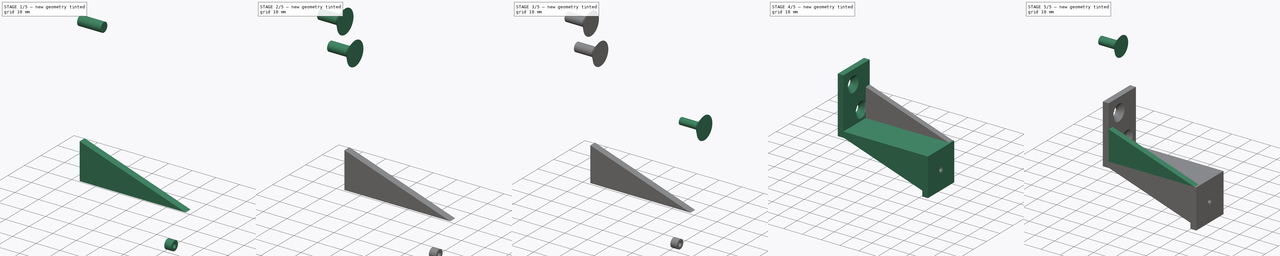
[diagram: build sequence overview — one tinted view per stage of 5, left to right]
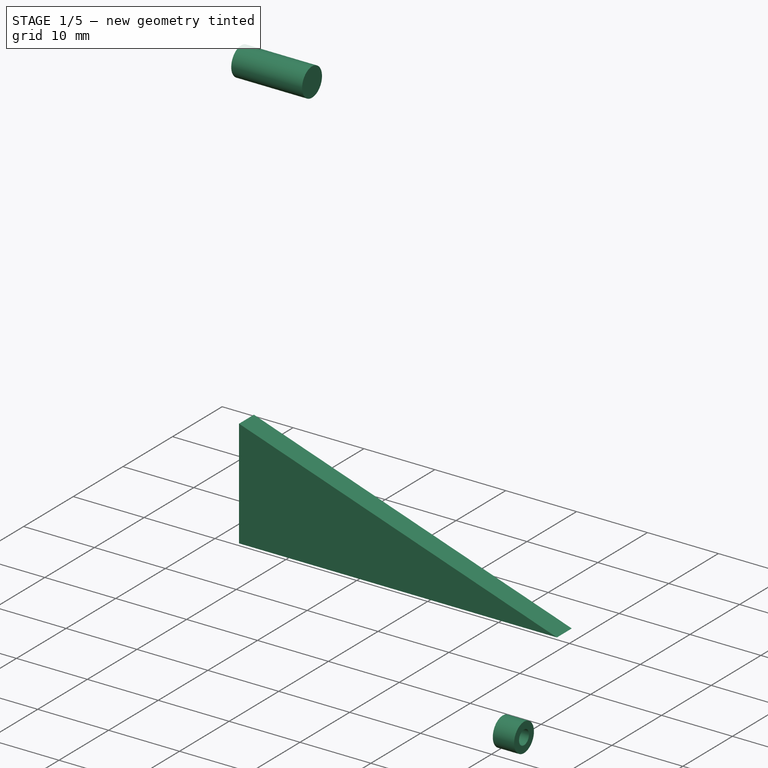
[diagram: stage 1 of 5 — iso view after this stage's code; geometry added in this stage tinted green]
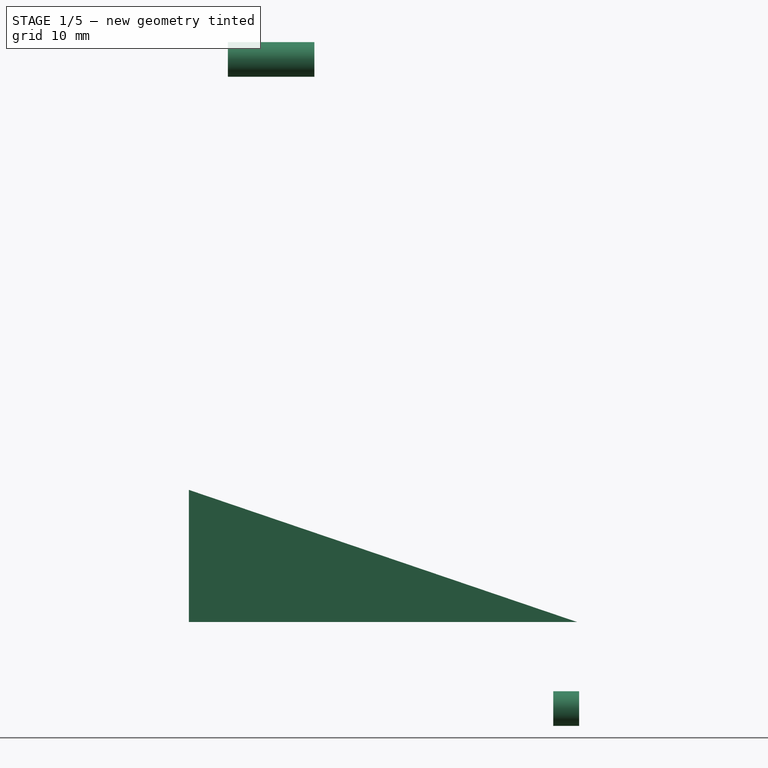
[diagram: stage 1 of 5 — front view after this stage's code; geometry added in this stage tinted green]
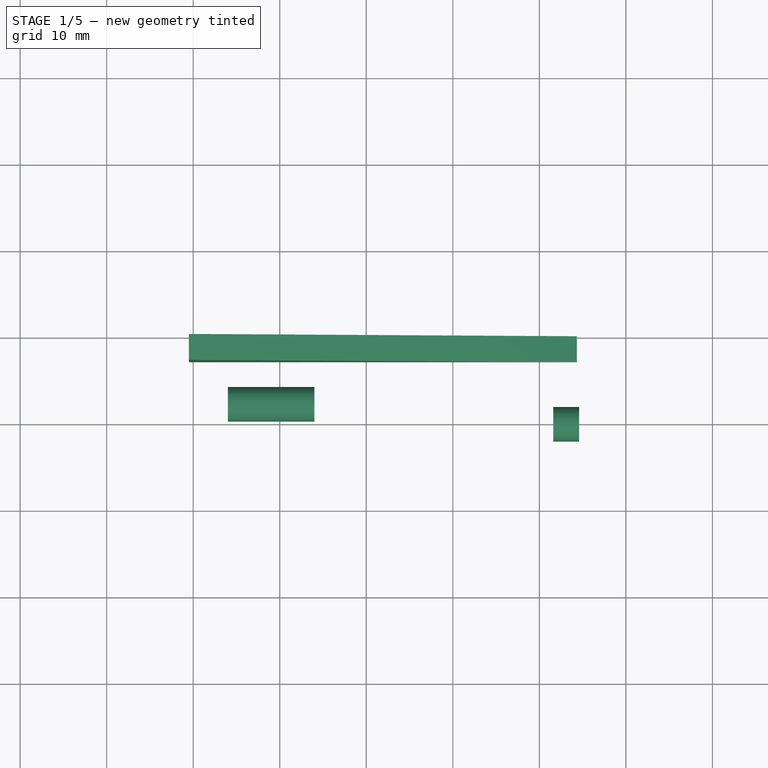
[diagram: stage 1 of 5 — top view after this stage's code; geometry added in this stage tinted green]
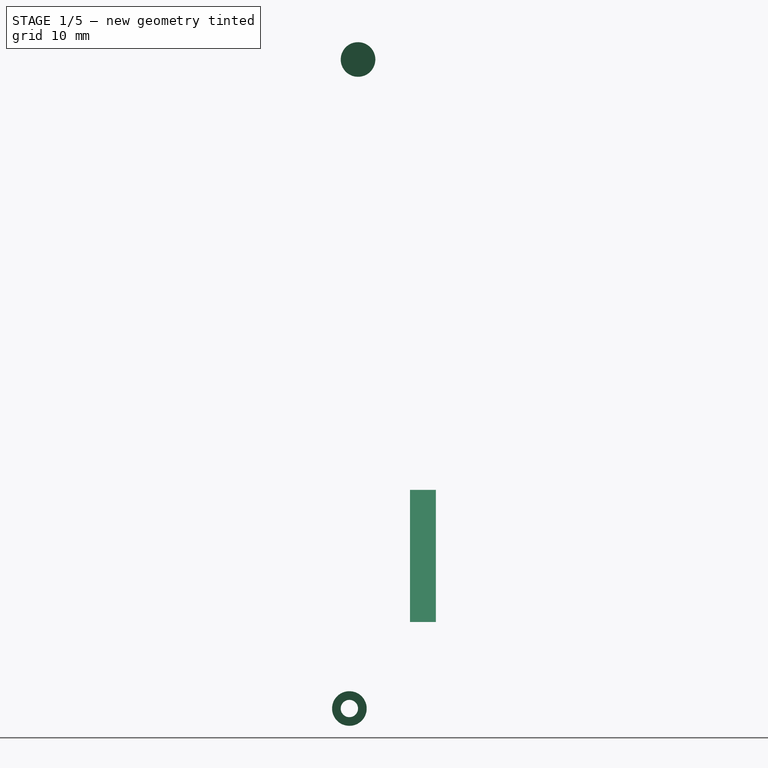
[diagram: stage 1 of 5 — right view after this stage's code; geometry added in this stage tinted green]
FCSTD DOCUMENT  (FreeCAD 0.18R4 (GitTag))
Label: вынос подвески
License: All rights reserved
LicenseURL: http://en.wikipedia.org/wiki/All_rights_reserved
objects: Part::Cylinder×6, Part::Cone×4, Part::Fuse×4, Part::MultiFuse×4, Sketcher::SketchObject×3, PartDesign::Pad×3, PartDesign::Body×3, Part::Cut×3
note: 33 computed .brp shape members not serialized (recipe doc carries the construction recipe); baked Part::Feature solids carry a one-line shape summary decoded from their .brp

FEATURE [Part::Cylinder] Cylinder003  label="Цилиндр003"
  Angle = 360
  AttacherType = Attacher::AttachEngine3D
  Height = 10
  Placement = pos=(-16,-9,68) rot=(0,1,0;1.5708rad)
  Radius = 2
FEATURE [PartDesign::Body] Body001
  Group = -> [Sketch001,Pad001]
  Origin = -> Origin001
  Placement = pos=(0,-17,0) rot=(0,0,1;0rad)
  Tip = -> Pad001
FEATURE [Sketcher::SketchObject] Sketch002
  MapMode = 5
  Placement = pos=(0,0,0) rot=(1,0,0;1.5708rad)
  Support = -> [XZ_Plane002]
  sketch-geometry (3):
    g0: LineSegment StartX=-20.5035 StartY=18.264 StartZ=0 EndX=24.3412 EndY=3.00303 EndZ=0
    g1: LineSegment StartX=24.3412 StartY=3.00303 StartZ=0 EndX=-20.5035 EndY=3.00303 EndZ=0
    g2: LineSegment StartX=-20.5035 StartY=3.00303 StartZ=0 EndX=-20.5035 EndY=18.264 EndZ=0
  constraints (5):
    c: Coincident(g0,g1)
    c: Coincident(g1,g2)
    c: Coincident(g2,g0)
    c: Parallel(g1,g-1)
    c: Parallel(g2,g-2)
FEATURE [PartDesign::Pad] Pad002
  Length = 3
  Length2 = 100
  Placement = pos=(0,0,0) rot=(1,0,0;1.5708rad)
  Profile = -> Sketch002
  Type = 0
FEATURE [Part::Cylinder] Cylinder004  label="Цилиндр004"
  Angle = 360
  AttacherType = Attacher::AttachEngine3D
  Height = 3
  Placement = pos=(33,-10,-7) rot=(0,1,0;1.5708rad)
  Radius = 2
FEATURE [Part::Cylinder] Cylinder005  label="Цилиндр005"
  Angle = 360
  AttacherType = Attacher::AttachEngine3D
  Height = 10
  Placement = pos=(33,-10,-7) rot=(0,1,0;1.5708rad)
  Radius = 1
FEATURE [Part::Cut] Cut002
  Base = -> Cylinder004
  Placement = pos=(-11.4,0,0) rot=(0,0,1;0rad)
  Tool = -> Cylinder005
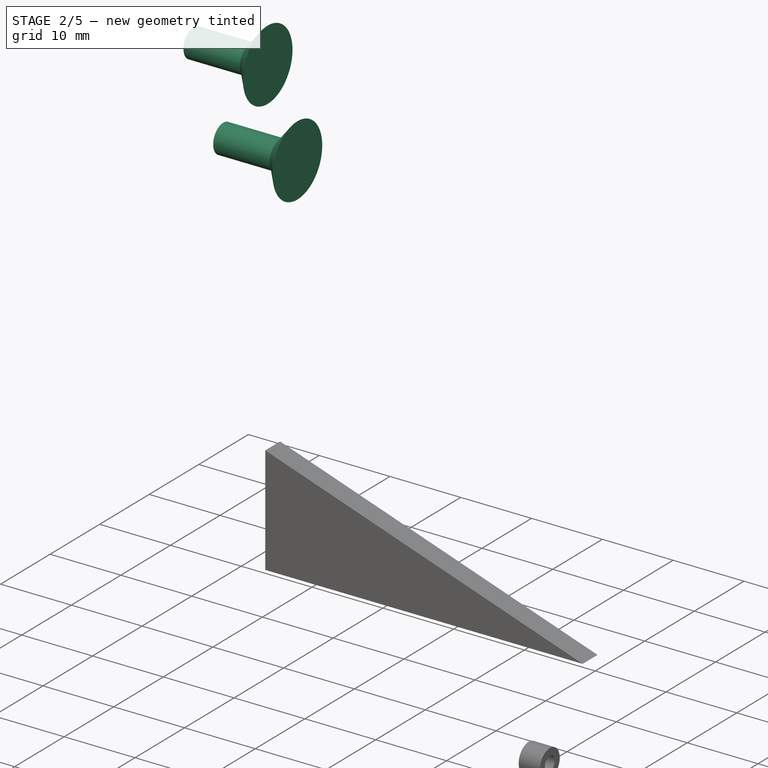
[diagram: stage 2 of 5 — iso view after this stage's code; geometry added in this stage tinted green]
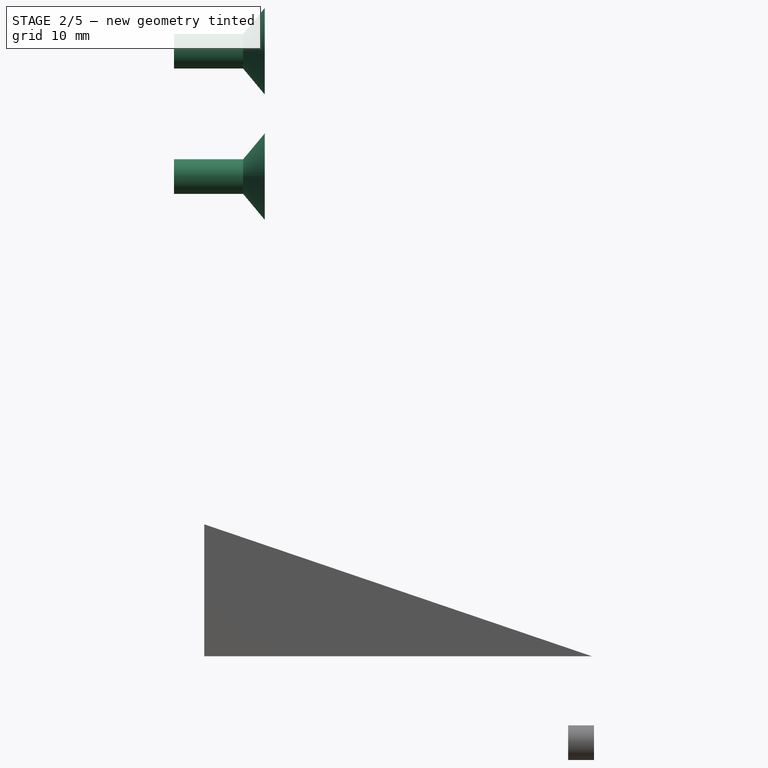
[diagram: stage 2 of 5 — front view after this stage's code; geometry added in this stage tinted green]
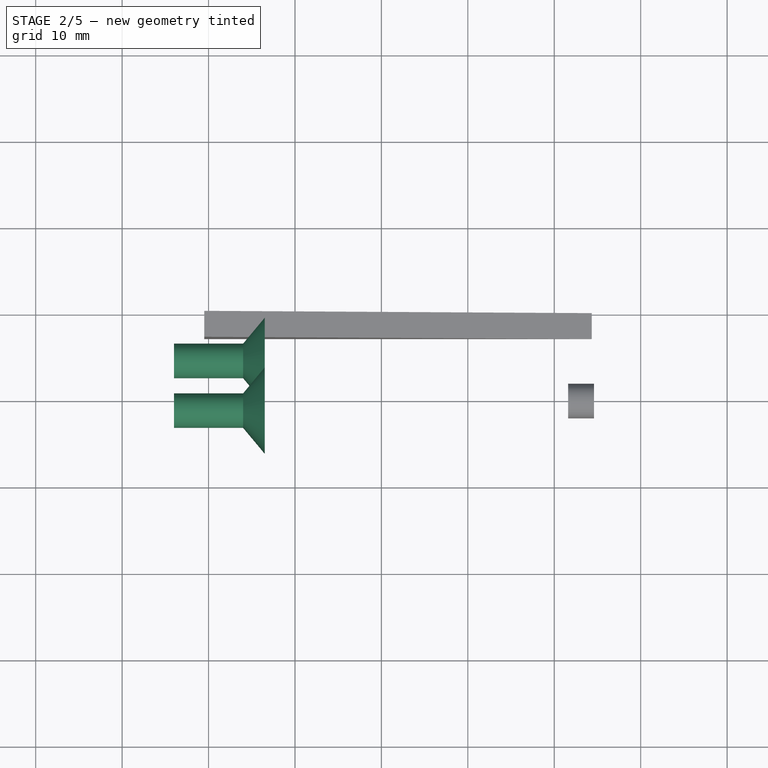
[diagram: stage 2 of 5 — top view after this stage's code; geometry added in this stage tinted green]
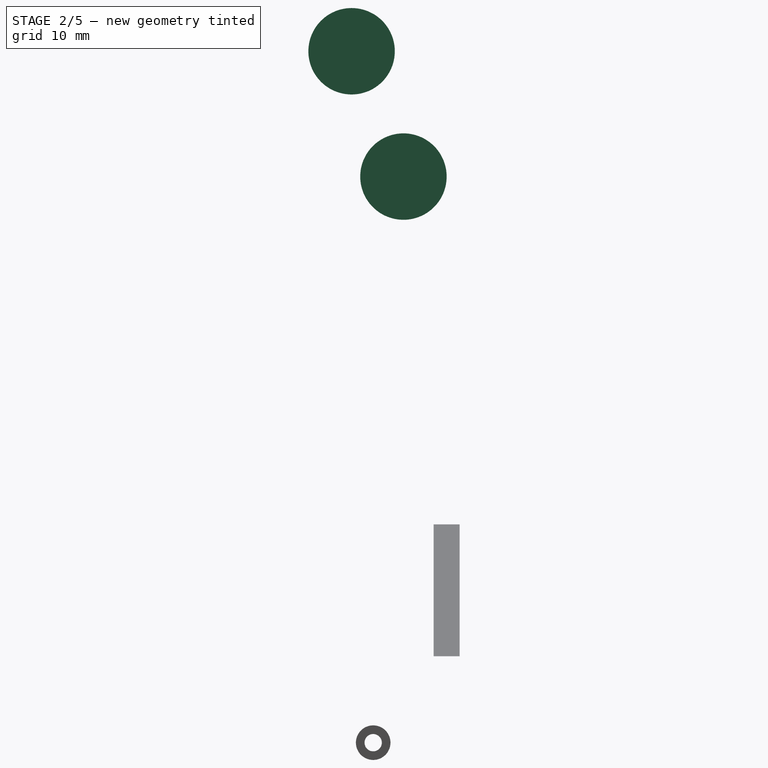
[diagram: stage 2 of 5 — right view after this stage's code; geometry added in this stage tinted green]
FEATURE [Part::Cone] Cone002  label="Конус002"
  Angle = 360
  AttacherType = Attacher::AttachEngine3D
  Height = 2.5
  Placement = pos=(-8,-9,68) rot=(0,1,0;1.5708rad)
  Radius1 = 2
  Radius2 = 5
FEATURE [Part::Cylinder] Cylinder002  label="Цилиндр002"
  Angle = 360
  AttacherType = Attacher::AttachEngine3D
  Height = 10
  Placement = pos=(-16,-9,68) rot=(0,1,0;1.5708rad)
  Radius = 2
FEATURE [Part::Fuse] Fusion002
  Base = -> Cone002
  Placement = pos=(-8,2.5,-9.5) rot=(0,0,1;0rad)
  Tool = -> Cylinder002
FEATURE [Part::Cone] Cone003  label="Конус003"
  Angle = 360
  AttacherType = Attacher::AttachEngine3D
  Height = 2.5
  Placement = pos=(-8,-9,68) rot=(0,1,0;1.5708rad)
  Radius1 = 2
  Radius2 = 5
FEATURE [Part::Fuse] Fusion003
  Base = -> Cone003
  Placement = pos=(-8,-3.5,5) rot=(0,0,1;0rad)
  Tool = -> Cylinder003
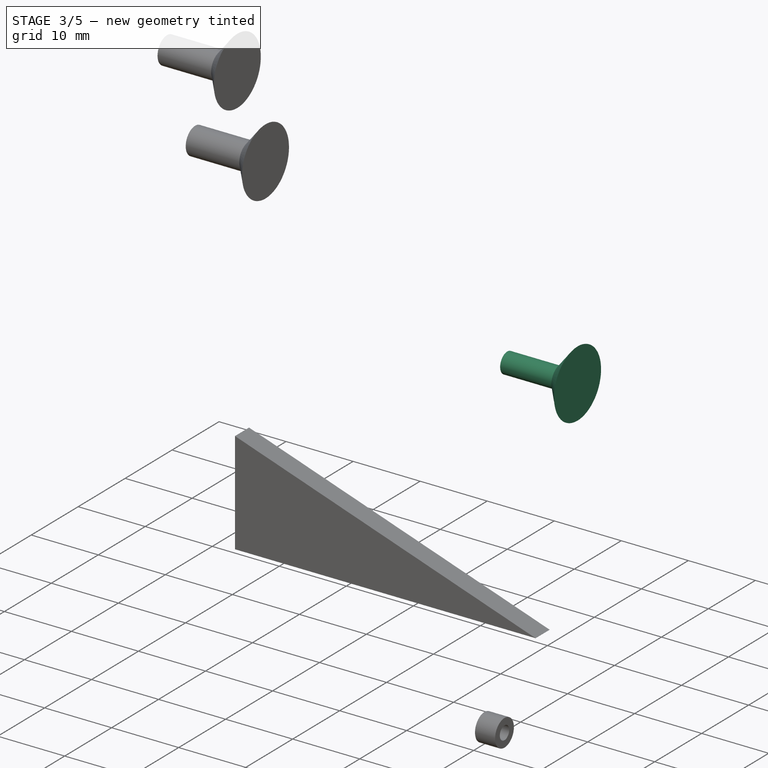
[diagram: stage 3 of 5 — iso view after this stage's code; geometry added in this stage tinted green]
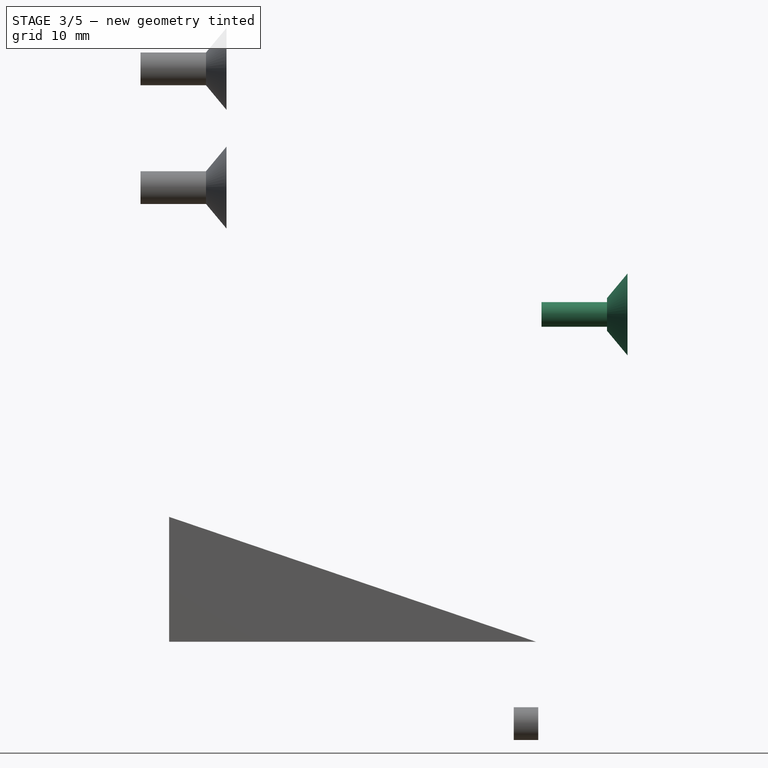
[diagram: stage 3 of 5 — front view after this stage's code; geometry added in this stage tinted green]
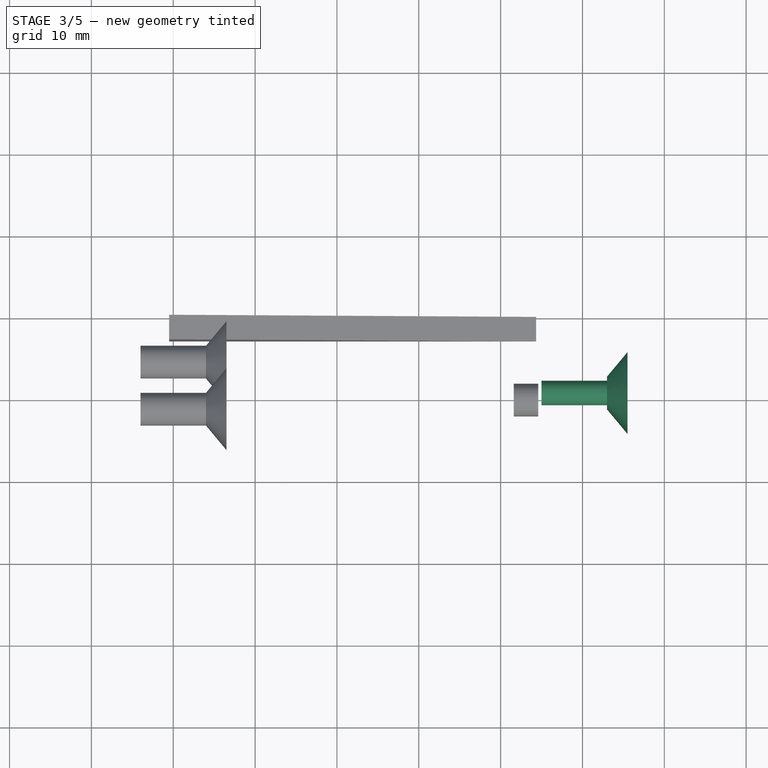
[diagram: stage 3 of 5 — top view after this stage's code; geometry added in this stage tinted green]
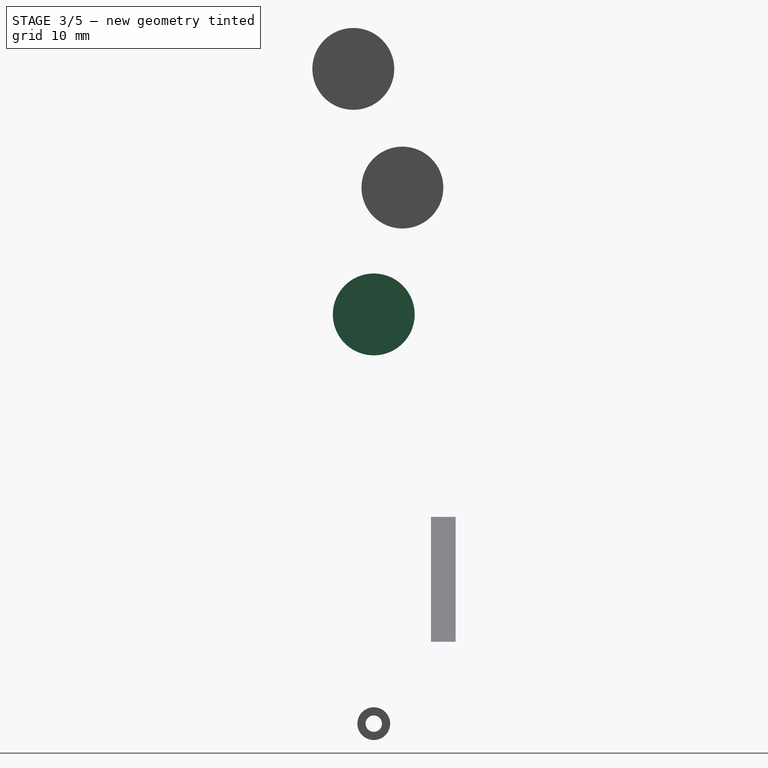
[diagram: stage 3 of 5 — right view after this stage's code; geometry added in this stage tinted green]
FEATURE [Part::Cylinder] Cylinder001  label="Цилиндр001"
  Angle = 360
  AttacherType = Attacher::AttachEngine3D
  Height = 10
  Placement = pos=(-16,-9,68) rot=(0,1,0;1.5708rad)
  Radius = 1
FEATURE [Part::Cone] Cone001  label="Конус001"
  Angle = 360
  AttacherType = Attacher::AttachEngine3D
  Height = 2.5
  Placement = pos=(-8,-9,68) rot=(0,1,0;1.5708rad)
  Radius1 = 2
  Radius2 = 5
FEATURE [Part::Fuse] Fusion001
  Base = -> Cone001
  Placement = pos=(41,-1,-25) rot=(0,0,1;0rad)
  Tool = -> Cylinder001
FEATURE [Part::MultiFuse] Fusion004
  Shapes = -> [Fusion002,Fusion003]
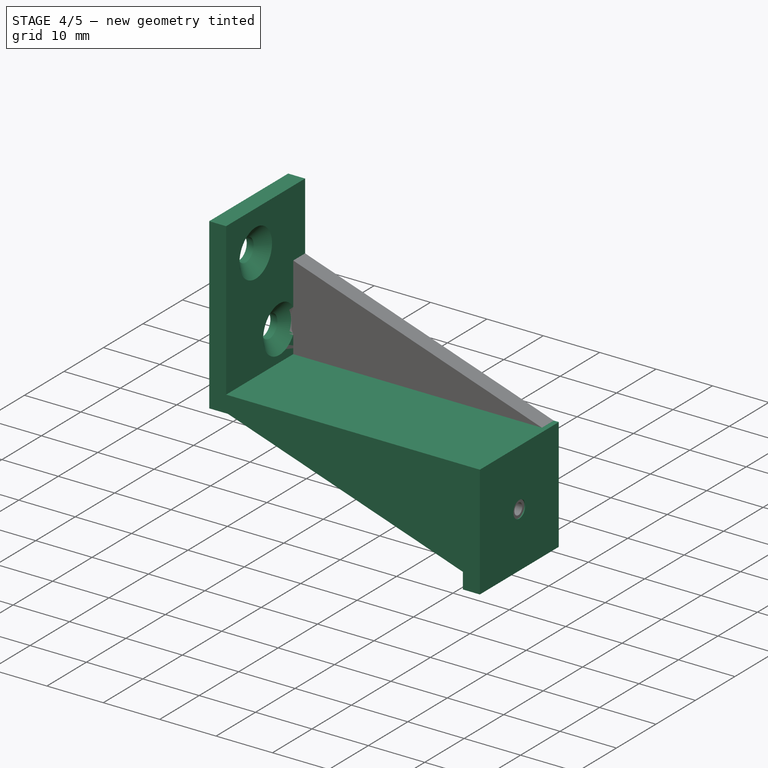
[diagram: stage 4 of 5 — iso view after this stage's code; geometry added in this stage tinted green]
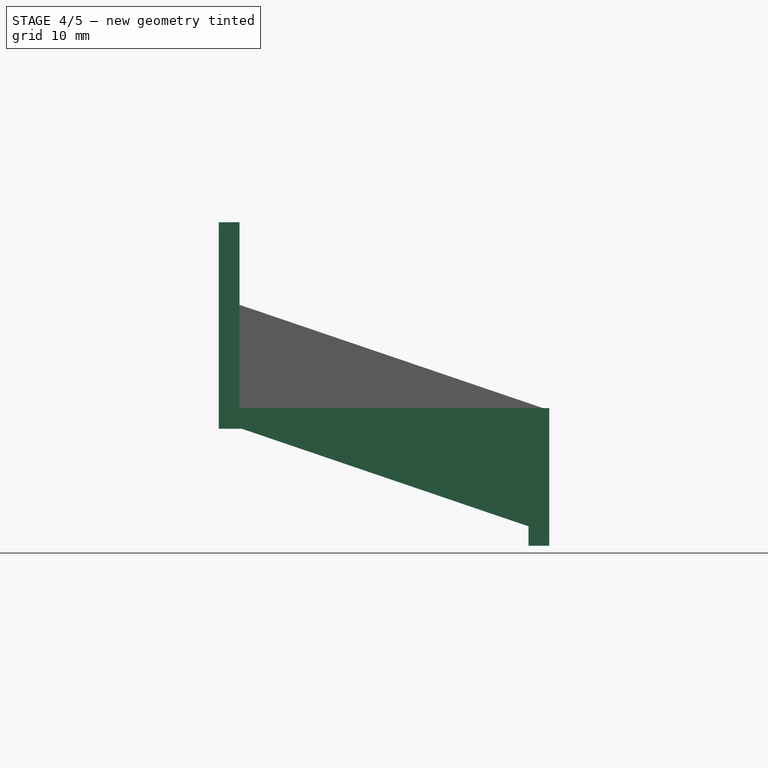
[diagram: stage 4 of 5 — front view after this stage's code; geometry added in this stage tinted green]
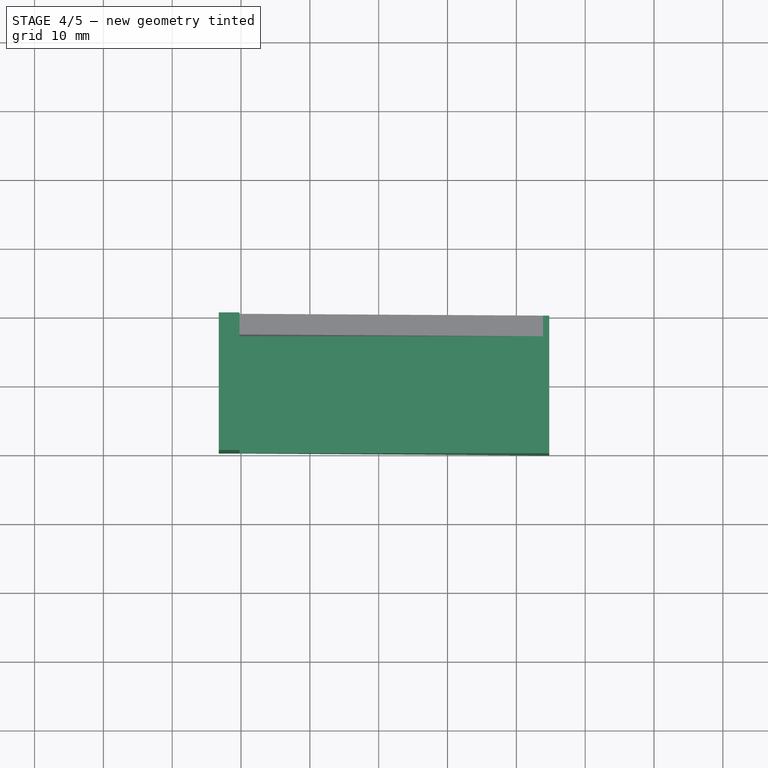
[diagram: stage 4 of 5 — top view after this stage's code; geometry added in this stage tinted green]
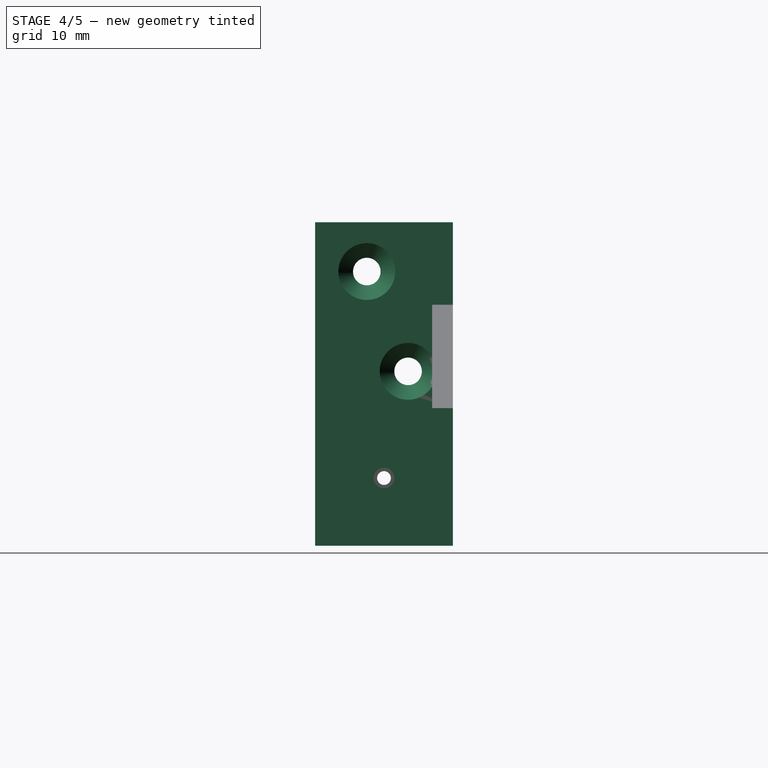
[diagram: stage 4 of 5 — right view after this stage's code; geometry added in this stage tinted green]
FEATURE [Sketcher::SketchObject] Sketch
  MapMode = 5
  Placement = pos=(0,0,0) rot=(1,0,0;1.5708rad)
  sketch-geometry (8):
    g0: LineSegment StartX=-17.2289 StartY=80.1625 StartZ=0 EndX=-14.2289 EndY=80.1625 EndZ=0
    g1: LineSegment StartX=-14.2289 StartY=80.1625 StartZ=0 EndX=-14.2289 EndY=53.1625 EndZ=0
    g2: LineSegment StartX=-17.2289 StartY=50.1625 StartZ=0 EndX=-17.2289 EndY=80.1625 EndZ=0
    g3: LineSegment StartX=-14.2289 StartY=53.1625 StartZ=0 EndX=30.7711 EndY=53.1625 EndZ=0
    g4: LineSegment StartX=27.7711 StartY=50.1625 StartZ=0 EndX=-17.2289 EndY=50.1625 EndZ=0
    g5: LineSegment StartX=30.7711 StartY=53.1625 StartZ=0 EndX=30.7711 EndY=33.1625 EndZ=0
    g6: LineSegment StartX=30.7711 StartY=33.1625 StartZ=0 EndX=27.7711 EndY=33.1625 EndZ=0
    g7: LineSegment StartX=27.7711 StartY=33.1625 StartZ=0 EndX=27.7711 EndY=50.1625 EndZ=0
  constraints (22):
    c: Coincident(g0,g1)
    c: Coincident(g2,g0)
    c: Horizontal(g0)
    c: Vertical(g1)
    c: Vertical(g2)
    c: Horizontal(g3)
    c: Horizontal(g4)
    c: Coincident(g5,g6)
    c: Coincident(g6,g7)
    c: Horizontal(g6)
    c: Vertical(g5)
    c: Vertical(g7)
    c: Coincident(g2,g4)
    c: Coincident(g1,g3)
    c: Coincident(g4,g7)
    c: Distance(g0,g2) = 30
    c: Distance(g0,g0) = 3
    c: Distance(g1,g4) = 3
    c: Coincident(g3,g5)
    c: Distance(g1,g3) = 45
    c: Distance(g6) = 3
    c: Distance(g7) = 17
FEATURE [PartDesign::Pad] Pad
  Length = 20
  Length2 = 100
  Placement = pos=(0,0,0) rot=(1,0,0;1.5708rad)
  Profile = -> Sketch
  Type = 0
FEATURE [PartDesign::Body] Body
  Group = -> [Sketch]
  Origin = -> Origin
FEATURE [Part::Cut] Cut
  Base = -> Pad
  Tool = -> Fusion001
FEATURE [Part::Cut] Cut001
  Base = -> Cut
  Placement = pos=(-6,0,-50) rot=(0,0,1;0rad)
  Tool = -> Fusion004
FEATURE [Sketcher::SketchObject] Sketch001
  MapMode = 5
  Placement = pos=(0,0,0) rot=(1,0,0;1.5708rad)
  Support = -> [XZ_Plane001]
  sketch-geometry (3):
    g0: LineSegment StartX=-20.5035 StartY=18.264 StartZ=0 EndX=24.3412 EndY=3.00303 EndZ=0
    g1: LineSegment StartX=24.3412 StartY=3.00303 StartZ=0 EndX=-20.5035 EndY=3.00303 EndZ=0
    g2: LineSegment StartX=-20.5035 StartY=3.00303 StartZ=0 EndX=-20.5035 EndY=18.264 EndZ=0
  constraints (5):
    c: Coincident(g0,g1)
    c: Coincident(g1,g2)
    c: Coincident(g2,g0)
    c: Parallel(g1,g-1)
    c: Parallel(g2,g-2)
FEATURE [PartDesign::Pad] Pad001
  Length = 3
  Length2 = 100
  Placement = pos=(0,0,0) rot=(1,0,0;1.5708rad)
  Profile = -> Sketch001
  Type = 0
FEATURE [PartDesign::Body] Body002
  Group = -> [Sketch002,Pad002]
  Origin = -> Origin002
  Placement = pos=(2,-17,4) rot=(0,1,0;3.14159rad)
  Tip = -> Pad002
FEATURE [Part::MultiFuse] Fusion005
  Shapes = -> [Cut001,Body002]
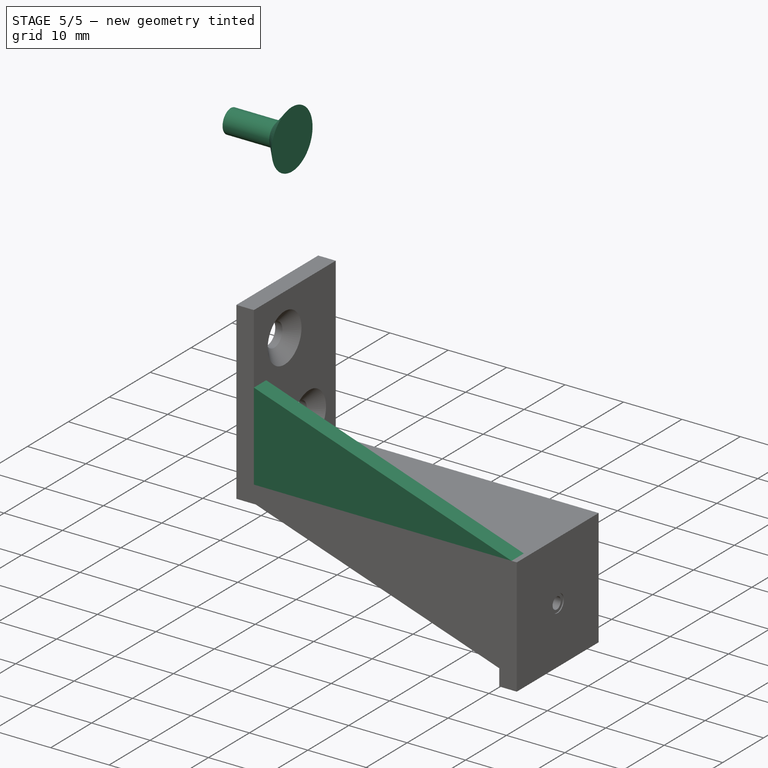
[diagram: stage 5 of 5 — iso view after this stage's code; geometry added in this stage tinted green]
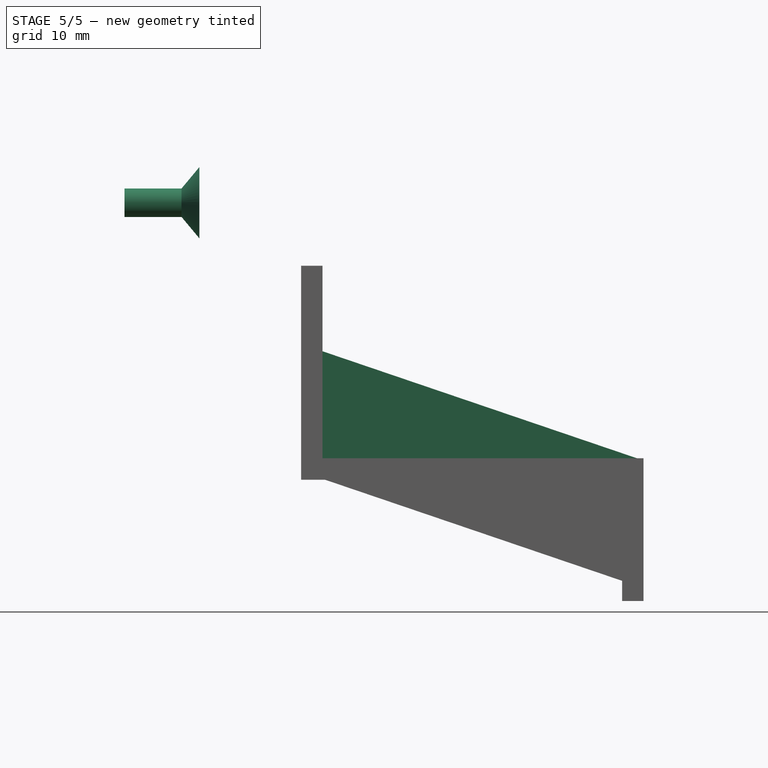
[diagram: stage 5 of 5 — front view after this stage's code; geometry added in this stage tinted green]
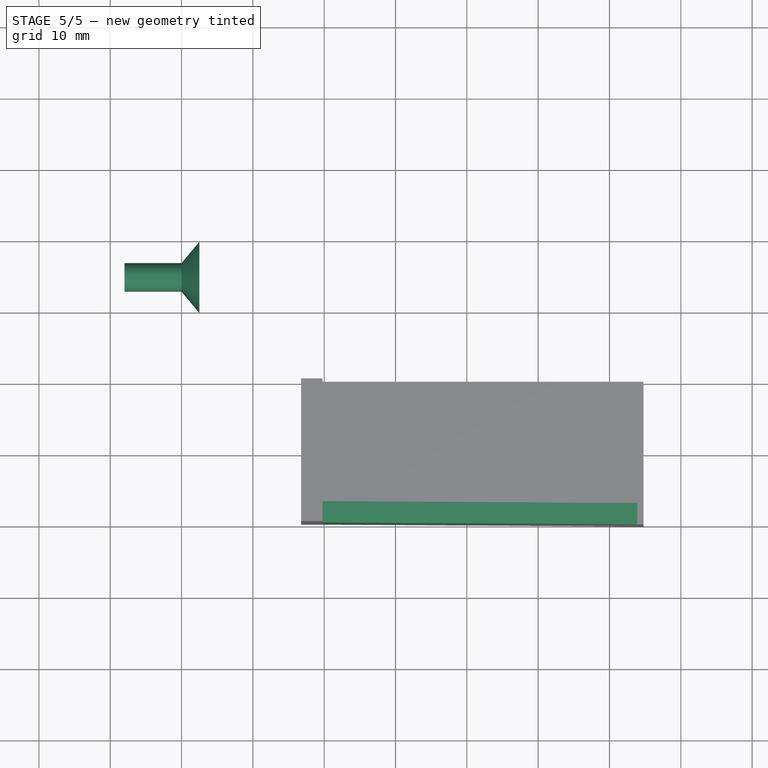
[diagram: stage 5 of 5 — top view after this stage's code; geometry added in this stage tinted green]
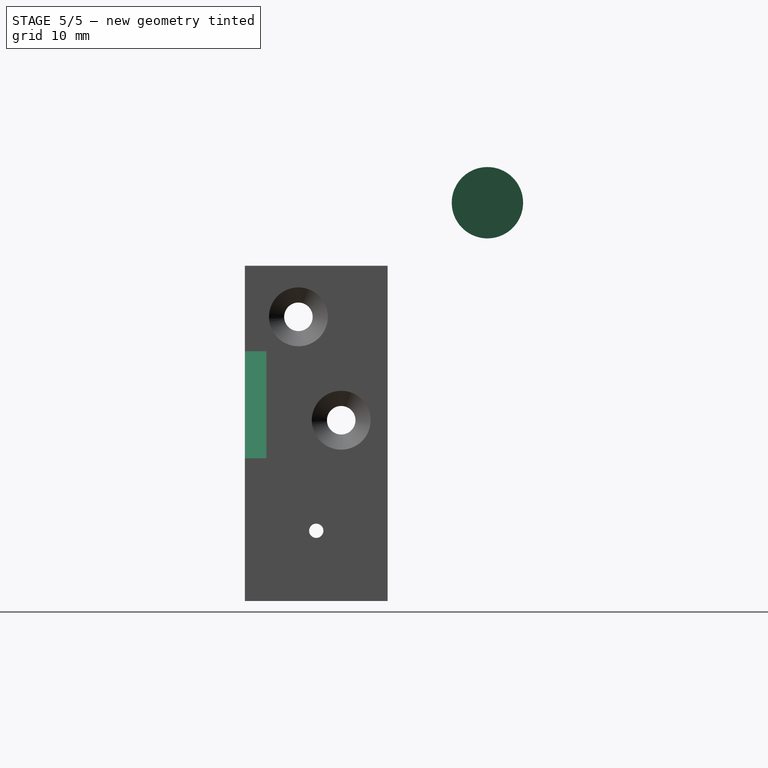
[diagram: stage 5 of 5 — right view after this stage's code; geometry added in this stage tinted green]
FEATURE [Part::Cone] Cone  label="Конус"
  Angle = 360
  AttacherType = Attacher::AttachEngine3D
  Height = 2.5
  Placement = pos=(-8,-9,68) rot=(0,1,0;1.5708rad)
  Radius1 = 2
  Radius2 = 5
FEATURE [Part::Cylinder] Cylinder  label="Цилиндр"
  Angle = 360
  AttacherType = Attacher::AttachEngine3D
  Height = 10
  Placement = pos=(-16,-9,68) rot=(0,1,0;1.5708rad)
  Radius = 2
FEATURE [Part::Fuse] Fusion
  Base = -> Cone
  Placement = pos=(-32,23,-29) rot=(0,0,1;0rad)
  Tool = -> Cylinder
FEATURE [Part::MultiFuse] Fusion006
  Shapes = -> [Fusion005,Body001]
FEATURE [Part::MultiFuse] Fusion007
  Shapes = -> [Cut002,Fusion006]
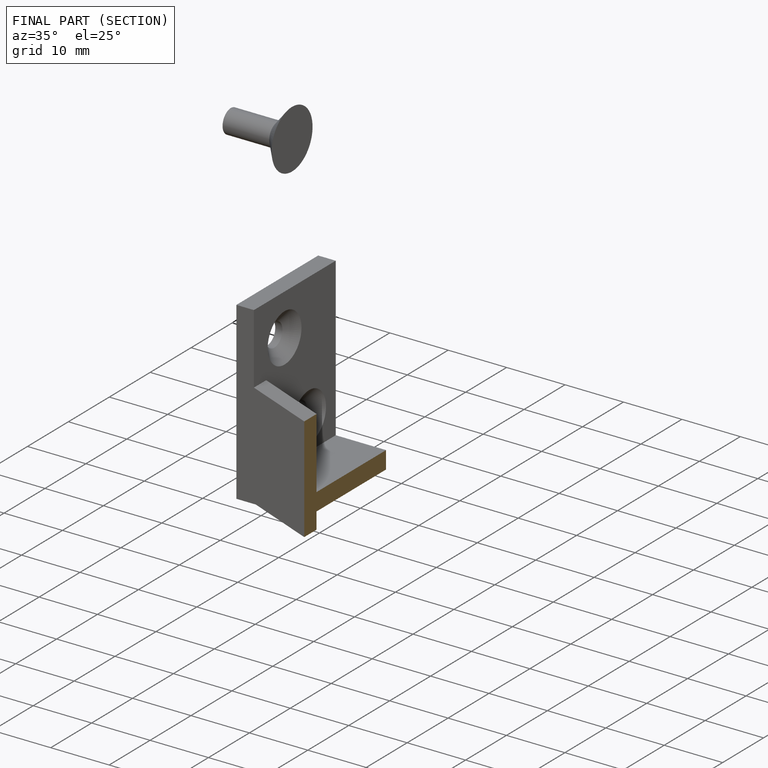
[diagram: finished part — half-section view (interior)]
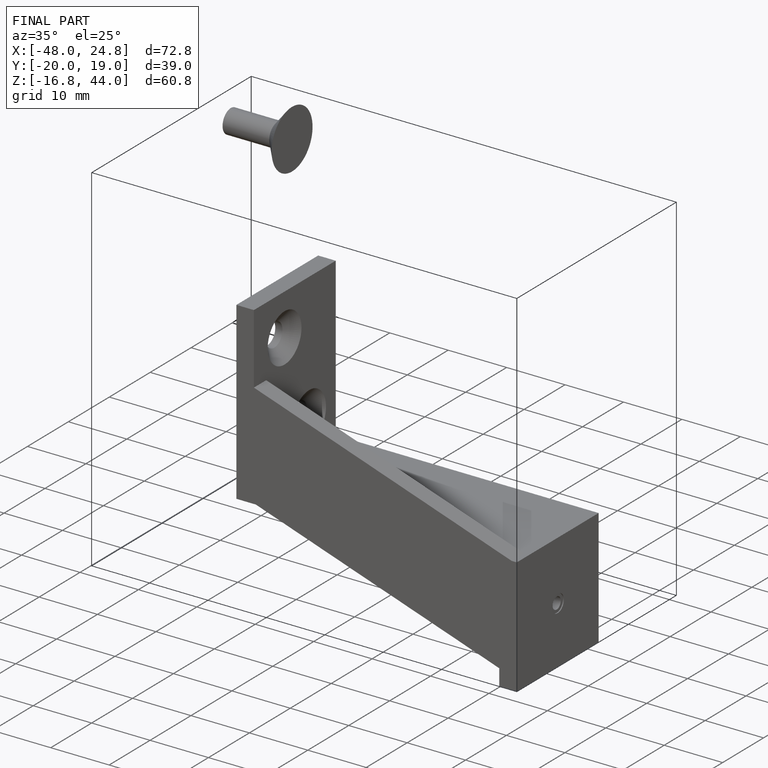
[diagram: finished part — iso view with bounding-box wireframe]
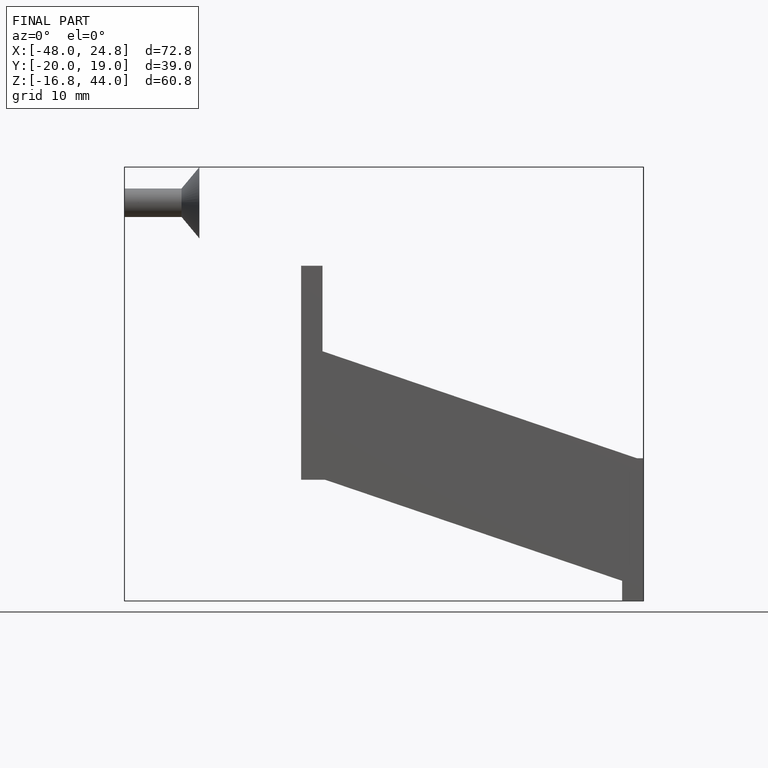
[diagram: finished part — front view with bounding-box wireframe]
